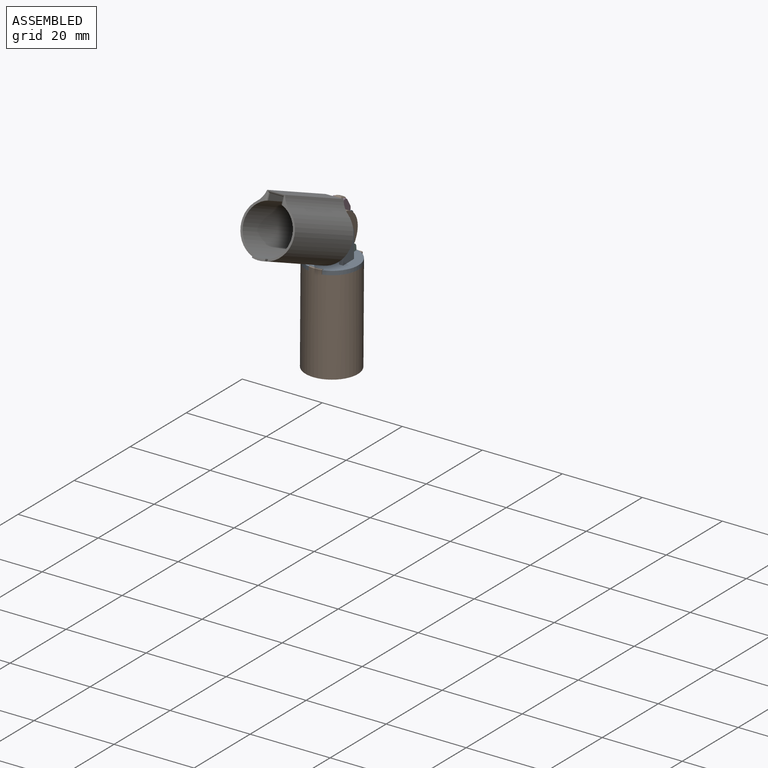
[diagram: assembled view]
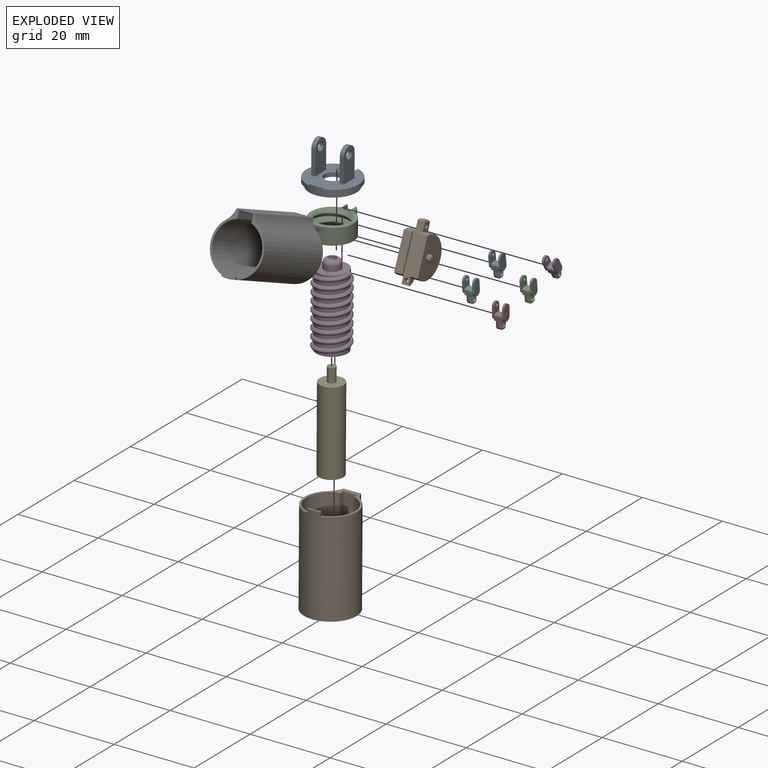
[diagram: exploded view]
GUIDED TOUR — MATED ASSEMBLY (Onshape document 576b71a8e4b0cc2e7f45caf5, AutoMate assembly 576b71a8e4b0cc2e7f45caf5_b0d993fea06a33bdf3748566_8494210f97b2610dedc9d5d6_default)

This assembly has 12 components, labeled P0..P11 below (a component is one placed occurrence of a part; the same part can appear more than once), held together by 12 mates. A mate is a constraint between two components; its type names the relative motion it leaves free:
  FASTENED — locks the two components together rigidly (no relative motion),
  REVOLUTE — leaves rotation about the listed axis free (a hinge).
Axis/direction vectors are unit vectors and 'through' points are millimeter coordinates, both in the assembly's world frame.

MATES
  1. REVOLUTE "Pivot-to-Top": P9 <-> P8, axis (1.000, 0.022, 0.000) through (2.66, -1.64, 7.49) mm
  2. REVOLUTE "Pivot-to-Link": P9 <-> P11, axis (1.000, 0.022, 0.000) through (0.61, 0.77, 13.18) mm
  3. REVOLUTE "Top-to-Worm": P3 <-> P8, axis (0.000, 0.009, 1.000) through (-0.24, -1.77, 0.49) mm
  4. REVOLUTE "Revolute 1": P7 <-> P2, axis (1.000, 0.022, 0.000) through (0.53, 4.29, -6.17) mm
  5. REVOLUTE "Revolute 3": P5 <-> P10, axis (-1.000, -0.022, 0.000) through (-1.26, 3.84, 1.82) mm
  6. FASTENED "Lid-to-Sleeve": P8 <-> P1, direction (0.000, -0.009, -1.000) through (-0.24, -1.78, -0.51) mm
  7. FASTENED "Motor-to-Worm": P4 <-> P3, direction (0.000, 0.009, 1.000) through (-0.24, -1.76, 1.29) mm
  8. REVOLUTE "Revolute 2": P7 <-> P5, axis (-1.000, -0.022, 0.000) through (-1.27, 4.16, -2.17) mm
  9. REVOLUTE "Revolute 6": P11 <-> P0, axis (1.000, 0.022, 0.000) through (0.56, 2.83, 9.75) mm
  10. FASTENED "Fastened 1": P6 <-> P9, direction (-0.020, 0.918, -0.396) through (-0.19, -4.00, 7.71) mm
  11. REVOLUTE "Revolute 4": P10 <-> P0, axis (-1.000, -0.022, 0.000) through (-1.25, 3.34, 5.79) mm
  12. REVOLUTE "Worm-to-Bolt": P2 <-> P3, axis (0.000, -0.009, -1.000) through (-0.23, -1.86, -9.11) mm

ASSEMBLY ORDER
  1. P3 — the base component [order heuristic]
  2. P4 — core [order heuristic]
  3. P2 — core [order heuristic]
  4. P1 — core [order heuristic]
  5. P8 — core [order heuristic]
  6. P7 — core [order heuristic]
  7. P9 — core [order heuristic]
  8. P5 — core [order heuristic]
  9. P11 — core [order heuristic]
  10. P0 — core [order heuristic]
  11. P10 — core [order heuristic]
  12. P6 [order verified]
Order-tag legend:
  [order verified] — this step's position reverses a verified removal order: the component was checked to insert without passing through the ones already placed.
  [order heuristic] — the first 11 components form the assembly's core: parts whose collision-free extraction could not be verified, listed in mate-graph order.

Of the 12 components, 1 carries the full construction recipe — the FeatureScript program that regenerates the part's solid from scratch; the rest are supplied as boundary geometry only.
Each toured component is shown spotlighted twice — in the assembled view, then in the exploded view, where a leader line traces a displaced component back to its assembled socket (saturated green if recipe-attached, orange if geometry-only; every other component desaturated gray) — followed by its recipe or geometry summary and the mates that hold it.
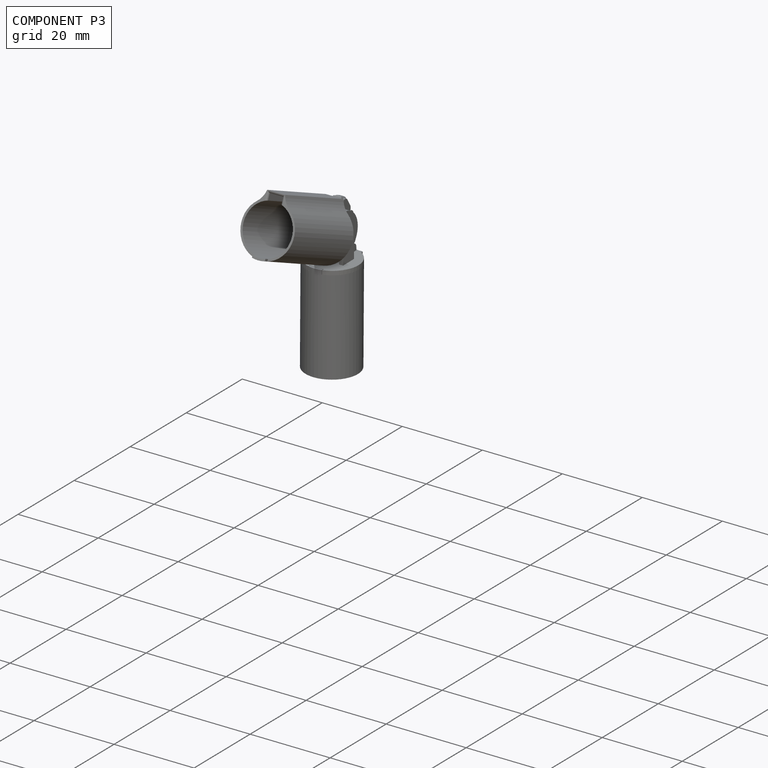
[diagram: component P3 — assembled]
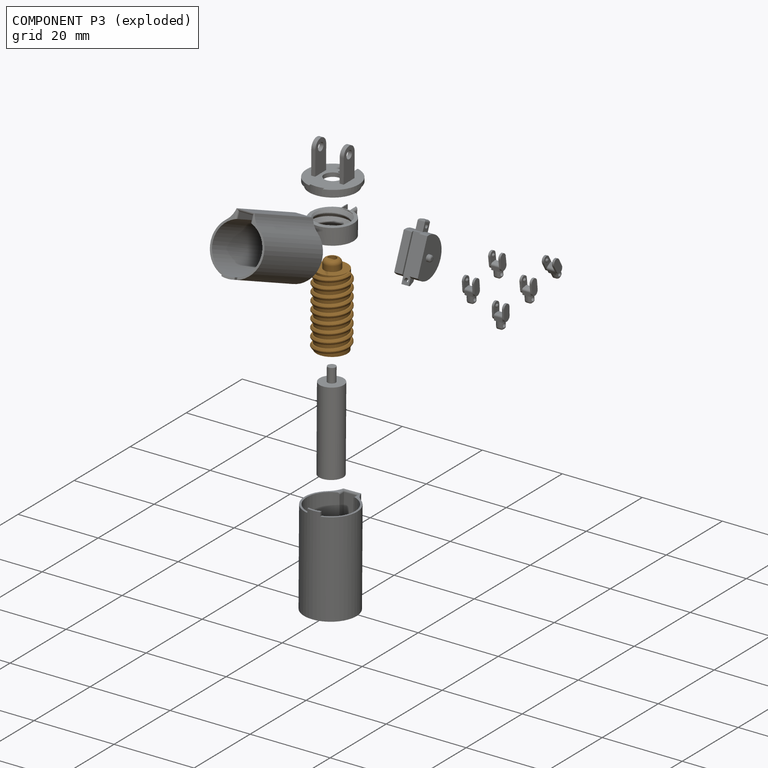
[diagram: component P3 — exploded]
COMPONENT P3 — geometry summary (no construction recipe available for this part):
  bounding box: 20.6 x 10.3 x 8.9 mm
  B-rep topology: 1 solid, 19 faces, 90 edges
  volume: 500 mm^3 (27% of its bounding box)
Held by: REVOLUTE mate "Top-to-Worm" to P8; FASTENED mate "Motor-to-Worm" to P4; REVOLUTE mate "Worm-to-Bolt" to P2.
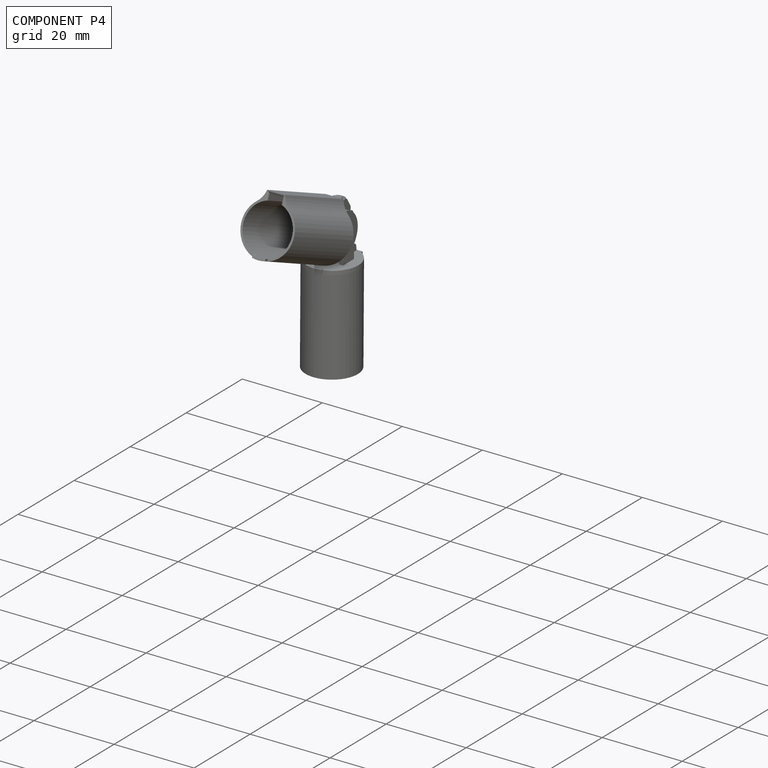
[diagram: component P4 — assembled]
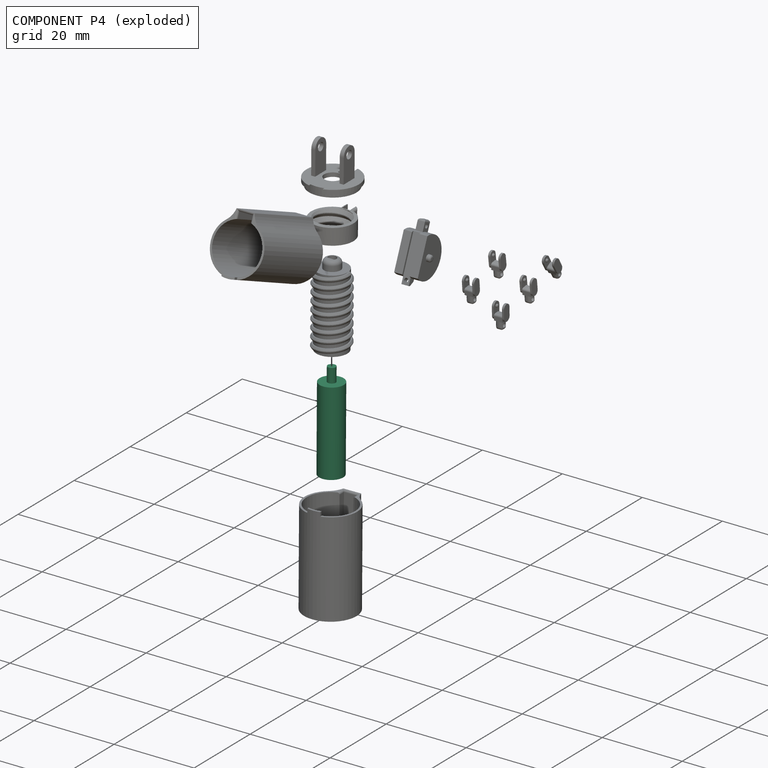
[diagram: component P4 — exploded]
COMPONENT P4 — recipe-attached (CADFS 00182902, mesh-verified: the recipe's output STEP matches this component's geometry to below the mesh-comparison resolution (tessellation chordal tolerance ~0.0386 mm)).
Held by: FASTENED mate "Motor-to-Worm" to P3.
Construction recipe (FeatureScript — the CAD program that rebuilds this solid; sketch coordinates are in the units given by the * unit suffixes, e.g. mm):

FeatureScript 1511;
import(path : "onshape/std/geometry.fs", version : "1511.0");
import(path : "onshape/std/common.fs", version : "1511.0");
const mm = millimeter;
const VERTEX = EntityType.VERTEX;
const EDGE = EntityType.EDGE;
const FACE = EntityType.FACE;
const BODY = EntityType.BODY;
function v(x, y){return vector(x, y);}
function OD(order){return orderDisambiguation(order);}
function OSD(set){return originalSetDisambiguation(set);}
function TD(topology){return topologyDisambiguation(topology);}
function TDD(query){return trueDependencyDisambiguation(query);}
function sQuery(a, b, c) {return sketchEntityQuery(a, b, c);}

annotation { "Feature Type Name" : "Feature", "Feature Type Description" : "" }
export const myFeature = defineFeature(function(context is Context, id is Id, definition is map)
    precondition{}
    {
        {
            var Q0;
            Q0=qCreatedBy(makeId("Top.planeOp"),FACE);
            var sketch = newSketch(context, id + "F0", { "sketchPlane" : qUnion([Q0])});
            skCircle(sketch, "E0", {"center": v(0, 0) * mm, "radius": 3 * mm});
            skCircle(sketch, "E1", {"center": v(0, 0) * mm, "radius": 1 * mm});
            skSolve(sketch);
        }
        {
            var Q0;
            Q0=makeQuery(id+"F0.imprint","IMPRINT",FACE,{"disambiguationData":[TD([[makeQuery(id+"F0.imprint","IMPRINT",EDGE,{"derivedFrom":sQuery(id+"F0.wireOp",EDGE,"E1")}),1.0]])]});
            extrude(context, id + "F1", {"entities" : qUnion([Q0]), "depth" : 24.3 * mm});
        }
        {
            var Q0;
            Q0=makeQuery(id+"F0.imprint","IMPRINT",FACE,{"disambiguationData":[TD([[makeQuery(id+"F0.imprint","IMPRINT",EDGE,{"derivedFrom":sQuery(id+"F0.wireOp",EDGE,"E0")}),1.0]])]});
            extrude(context, id + "F2", {"entities" : qUnion([Q0]), "operationType" : NewBodyOperationType.ADD, "depth" : 20.8 * mm});
        }
    });
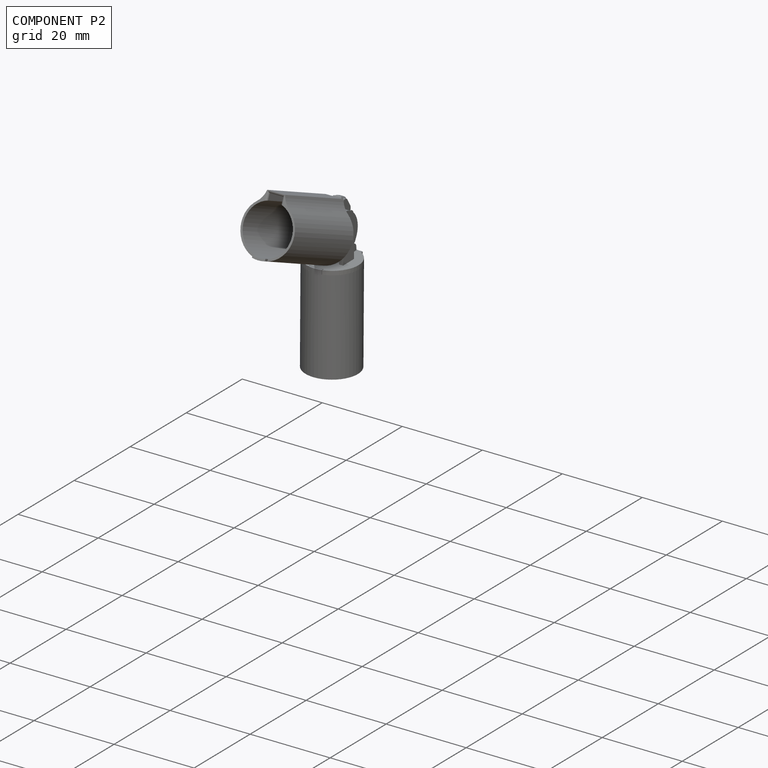
[diagram: component P2 — assembled]
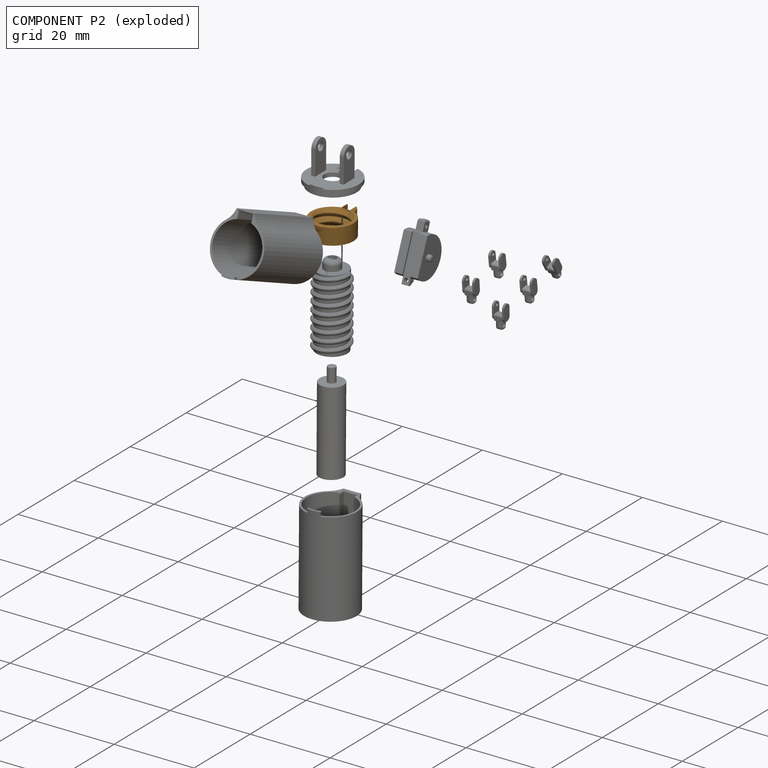
[diagram: component P2 — exploded]
COMPONENT P2 — geometry summary (no construction recipe available for this part):
  bounding box: 13.0 x 11.5 x 6.8 mm
  B-rep topology: 1 solid, 27 faces, 128 edges
  volume: 110 mm^3 (11% of its bounding box)
Held by: REVOLUTE mate "Revolute 1" to P7; REVOLUTE mate "Worm-to-Bolt" to P3.
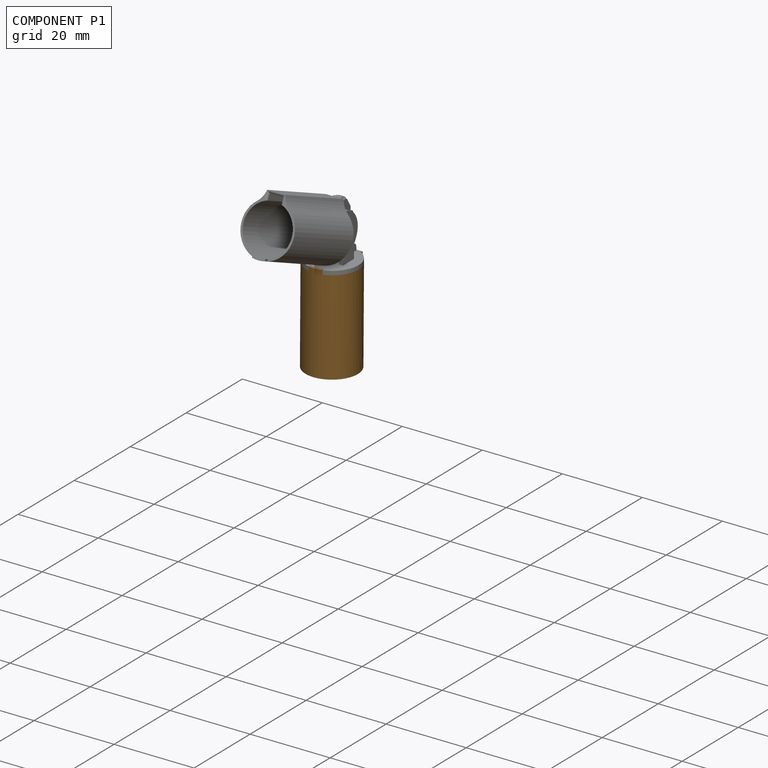
[diagram: component P1 — assembled]
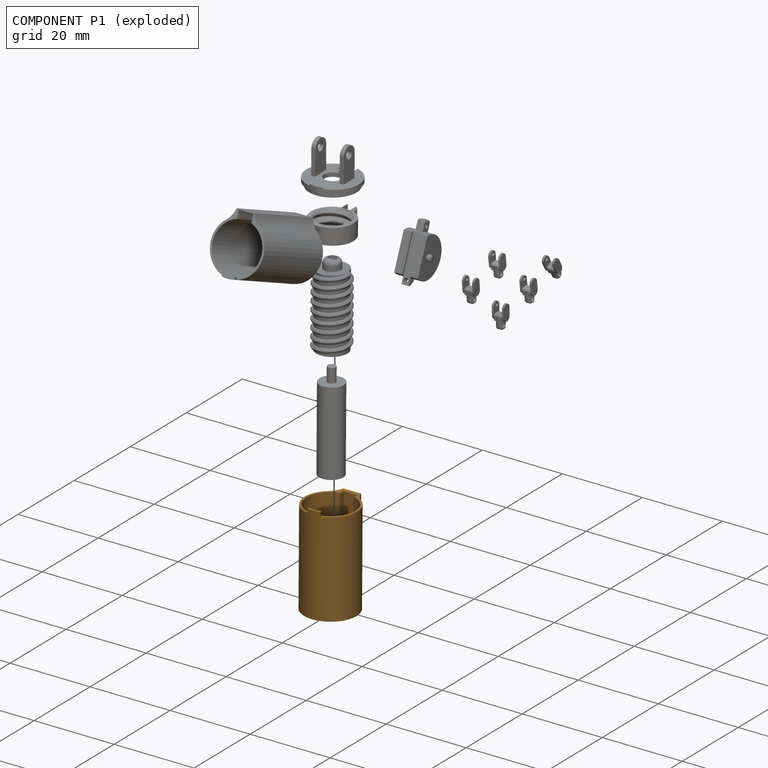
[diagram: component P1 — exploded]
COMPONENT P1 — geometry summary (no construction recipe available for this part):
  bounding box: 24.5 x 14.4 x 13.0 mm
  B-rep topology: 1 solid, 19 faces, 92 edges
  volume: 720 mm^3 (16% of its bounding box)
  symmetry: mirror-symmetric across its y mid-plane
Held by: FASTENED mate "Lid-to-Sleeve" to P8.
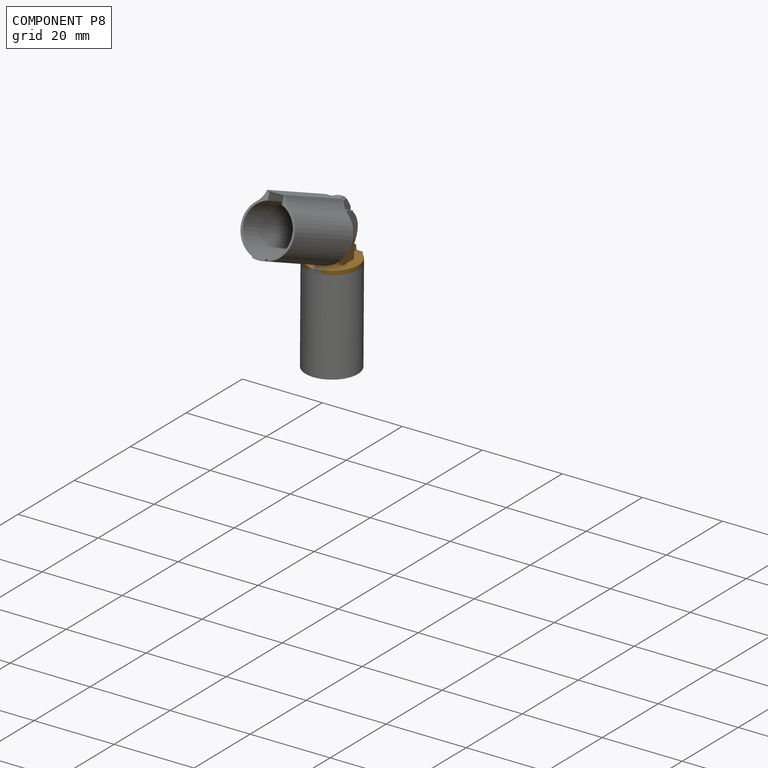
[diagram: component P8 — assembled]
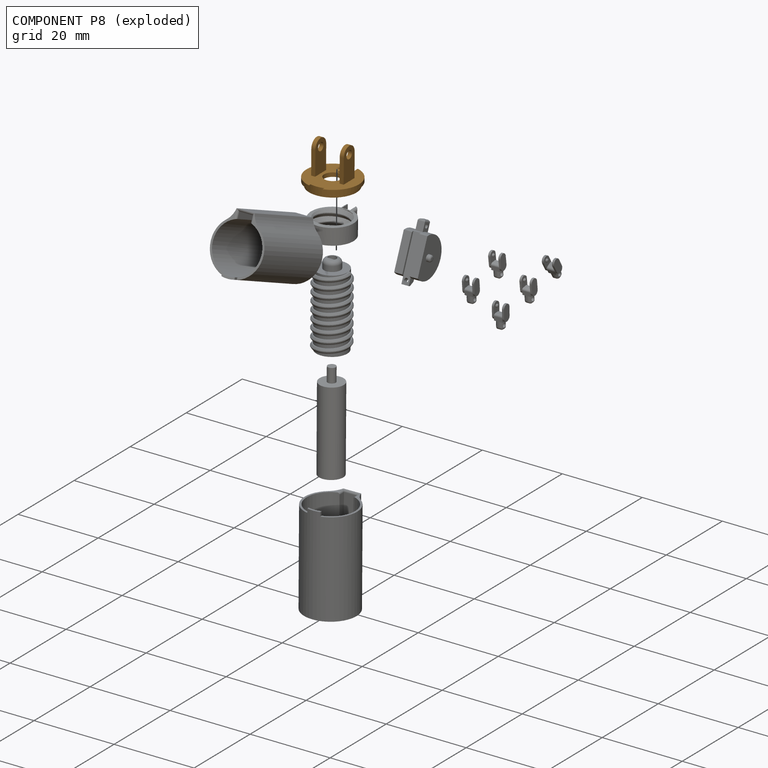
[diagram: component P8 — exploded]
COMPONENT P8 — geometry summary (no construction recipe available for this part):
  bounding box: 13.0 x 12.5 x 10.0 mm
  B-rep topology: 1 solid, 32 faces, 176 edges
  volume: 203 mm^3 (12% of its bounding box)
  symmetry: mirror-symmetric across its y mid-plane
Held by: REVOLUTE mate "Pivot-to-Top" to P9; REVOLUTE mate "Top-to-Worm" to P3; FASTENED mate "Lid-to-Sleeve" to P1.
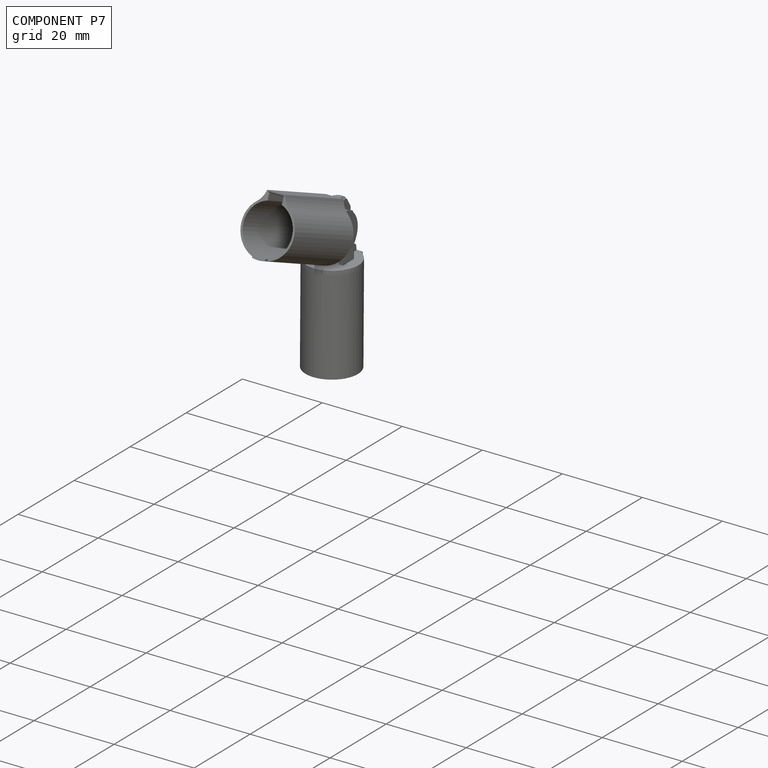
[diagram: component P7 — assembled]
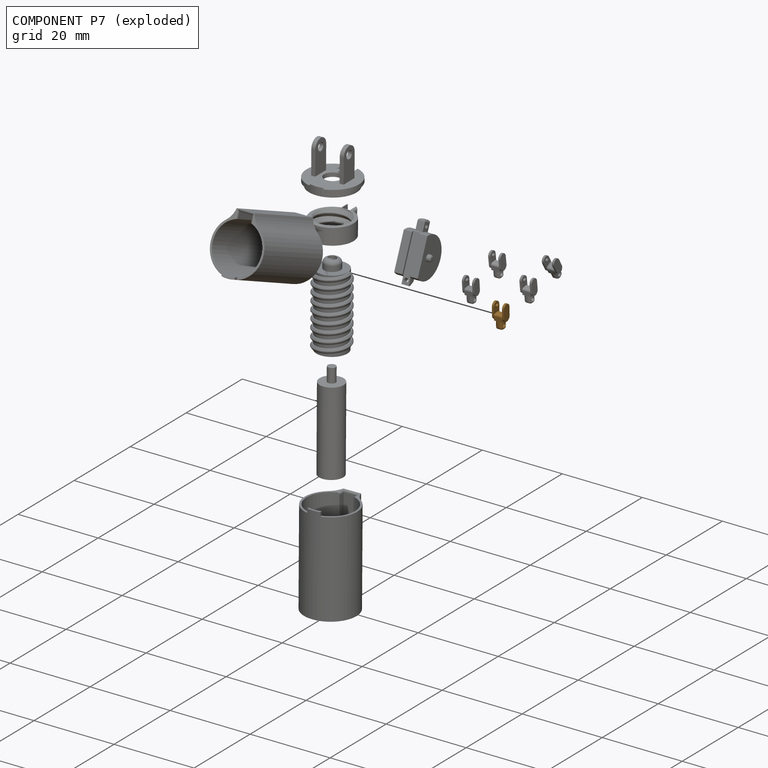
[diagram: component P7 — exploded]
COMPONENT P7 — geometry summary (no construction recipe available for this part):
  bounding box: 6.0 x 3.0 x 2.0 mm
  B-rep topology: 1 solid, 49 faces, 226 edges
  volume: 17 mm^3 (49% of its bounding box)
  symmetry: 2-fold rotationally symmetric about the x axis; mirror-symmetric across its y mid-plane, z mid-plane
Held by: REVOLUTE mate "Revolute 1" to P2; REVOLUTE mate "Revolute 2" to P5.
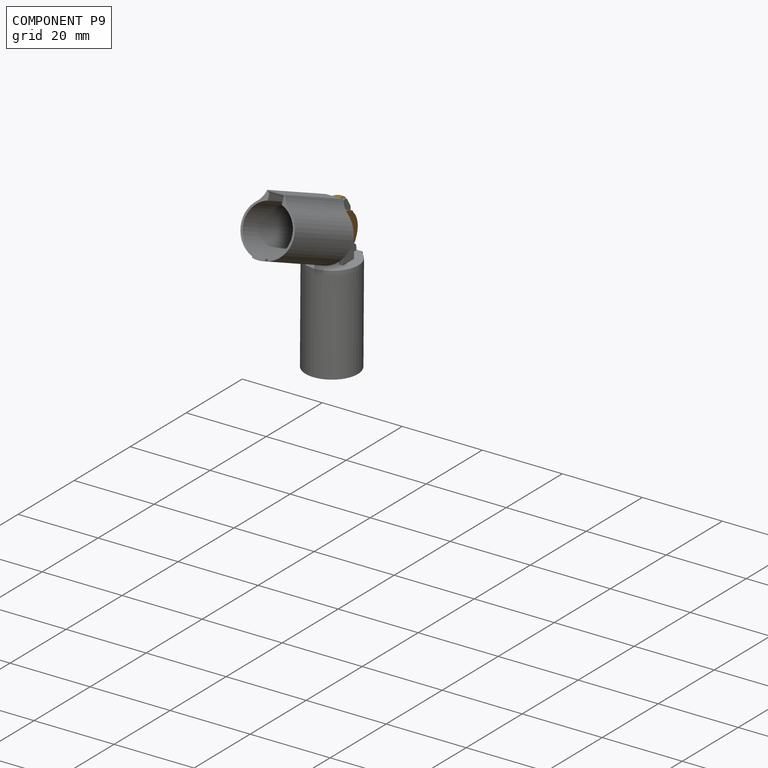
[diagram: component P9 — assembled]
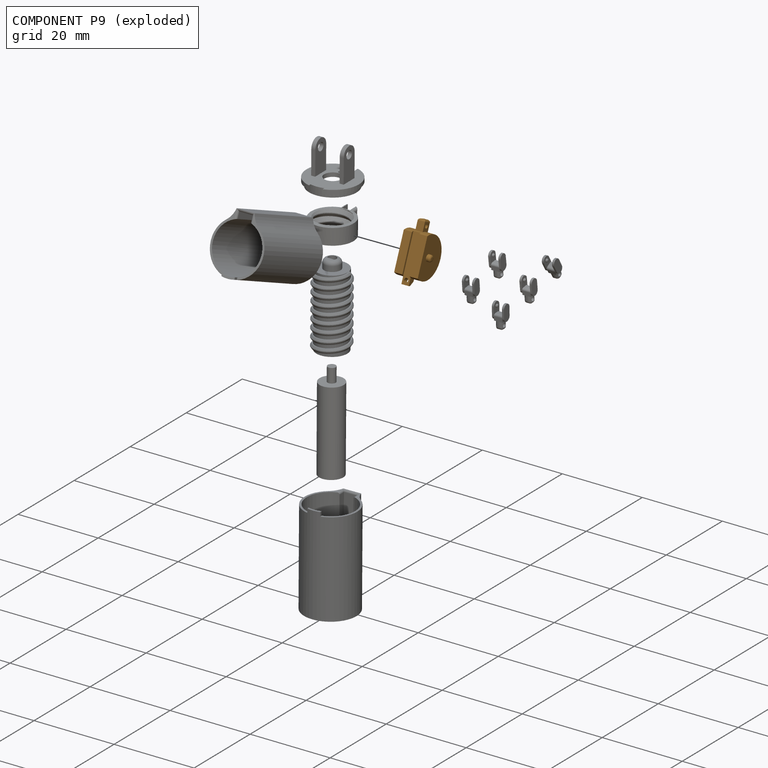
[diagram: component P9 — exploded]
COMPONENT P9 — geometry summary (no construction recipe available for this part):
  bounding box: 14.0 x 7.8 x 7.2 mm
  B-rep topology: 1 solid, 31 faces, 152 edges
  volume: 356 mm^3 (45% of its bounding box)
  symmetry: mirror-symmetric across its y mid-plane
Held by: REVOLUTE mate "Pivot-to-Top" to P8; REVOLUTE mate "Pivot-to-Link" to P11; FASTENED mate "Fastened 1" to P6.
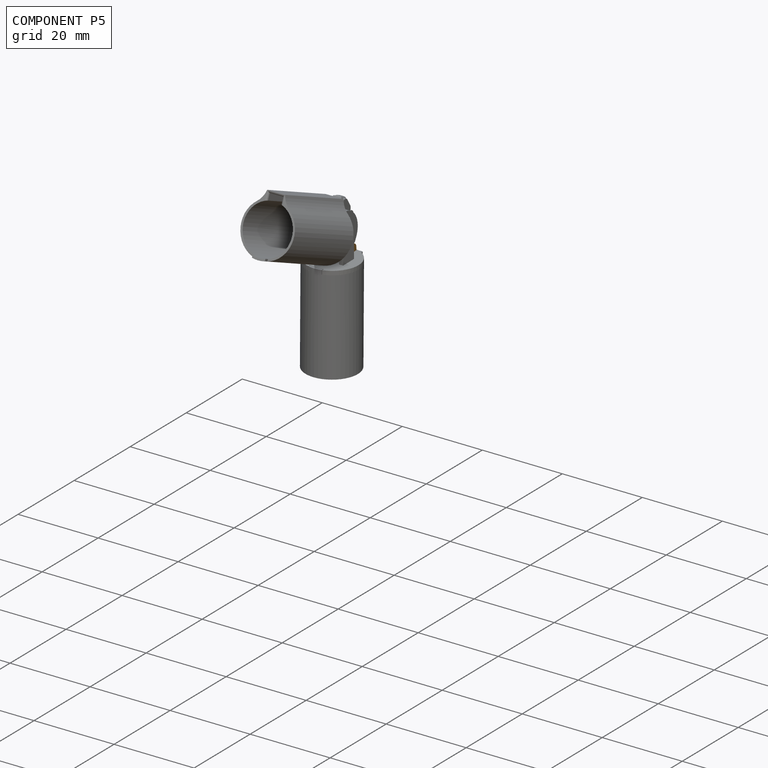
[diagram: component P5 — assembled]
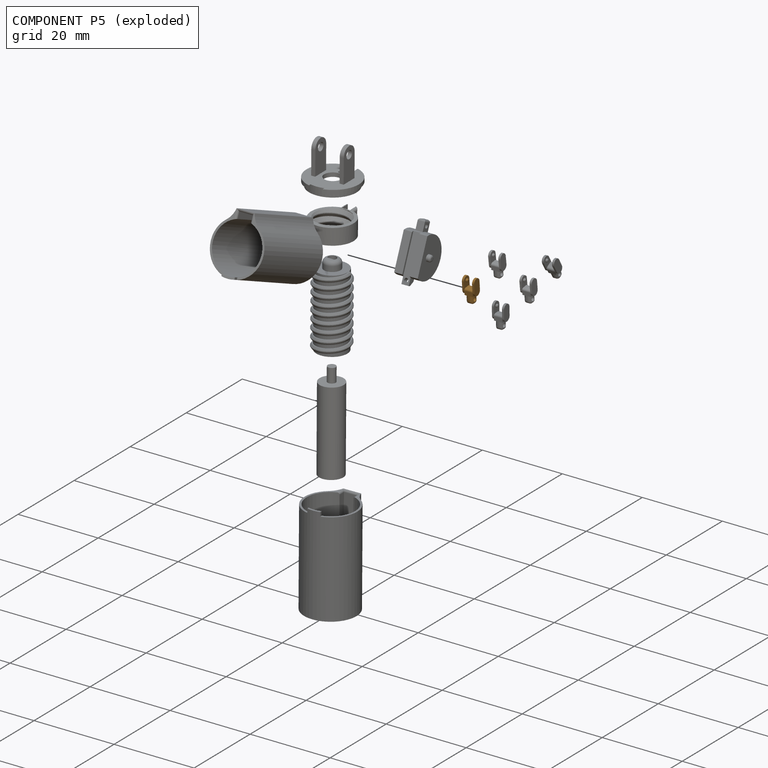
[diagram: component P5 — exploded]
COMPONENT P5 — geometry summary (no construction recipe available for this part):
  bounding box: 6.0 x 3.0 x 2.0 mm
  B-rep topology: 1 solid, 49 faces, 226 edges
  volume: 17 mm^3 (49% of its bounding box)
  symmetry: 2-fold rotationally symmetric about the x axis; mirror-symmetric across its y mid-plane, z mid-plane
Held by: REVOLUTE mate "Revolute 3" to P10; REVOLUTE mate "Revolute 2" to P7.
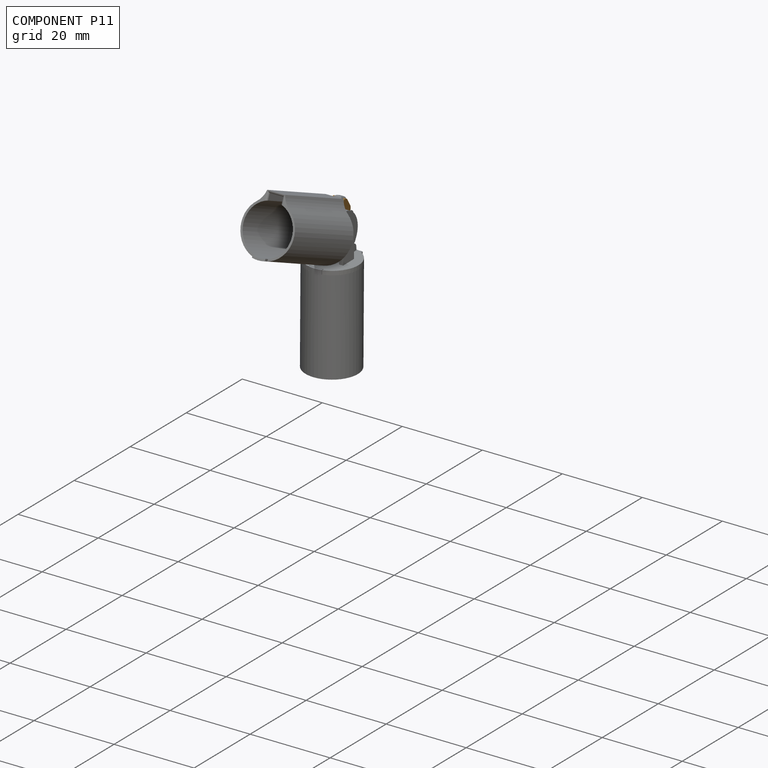
[diagram: component P11 — assembled]
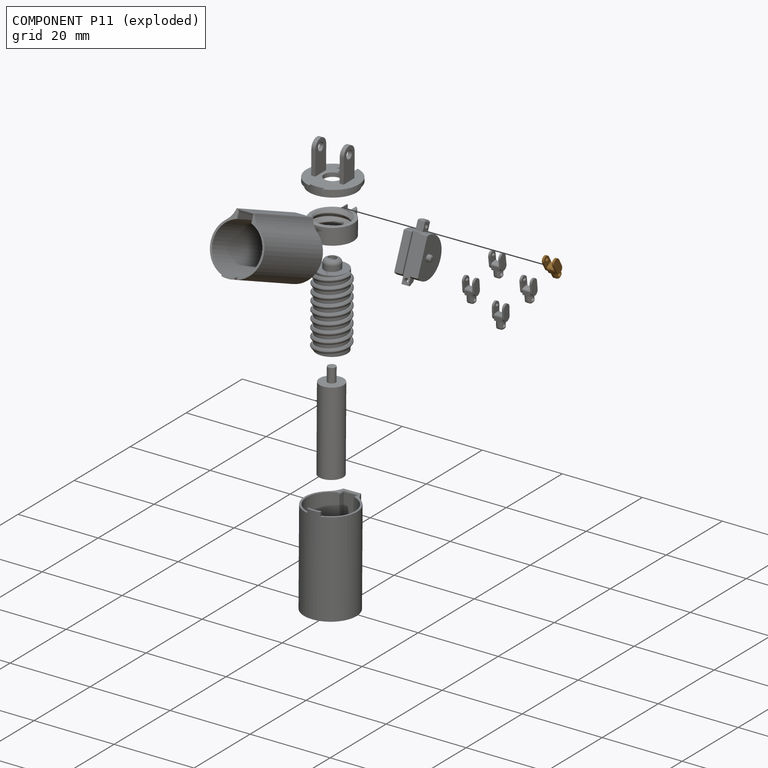
[diagram: component P11 — exploded]
COMPONENT P11 — geometry summary (no construction recipe available for this part):
  bounding box: 6.0 x 3.0 x 2.0 mm
  B-rep topology: 1 solid, 49 faces, 226 edges
  volume: 17 mm^3 (49% of its bounding box)
  symmetry: 2-fold rotationally symmetric about the x axis; mirror-symmetric across its y mid-plane, z mid-plane
Held by: REVOLUTE mate "Pivot-to-Link" to P9; REVOLUTE mate "Revolute 6" to P0.
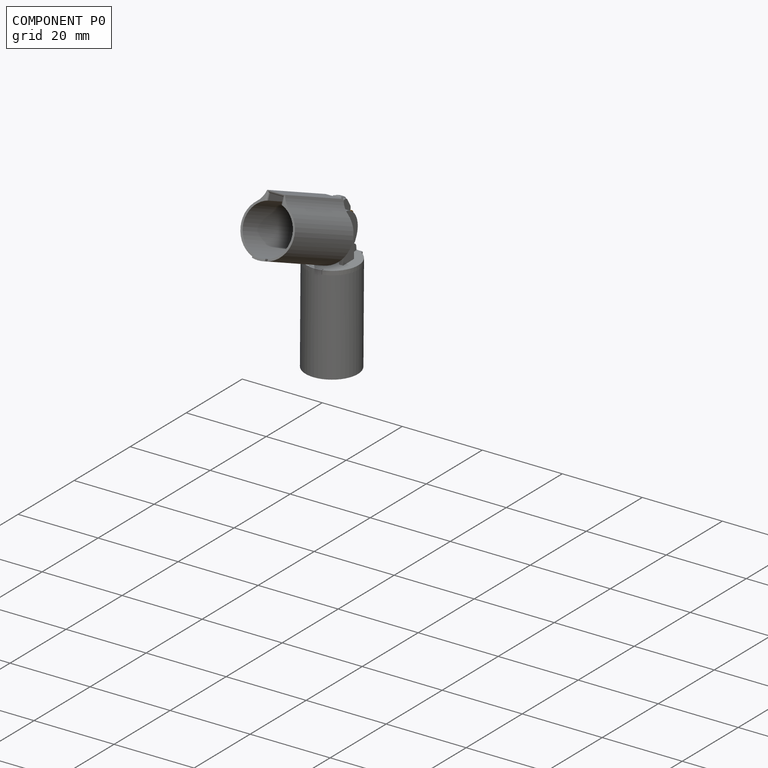
[diagram: component P0 — assembled]
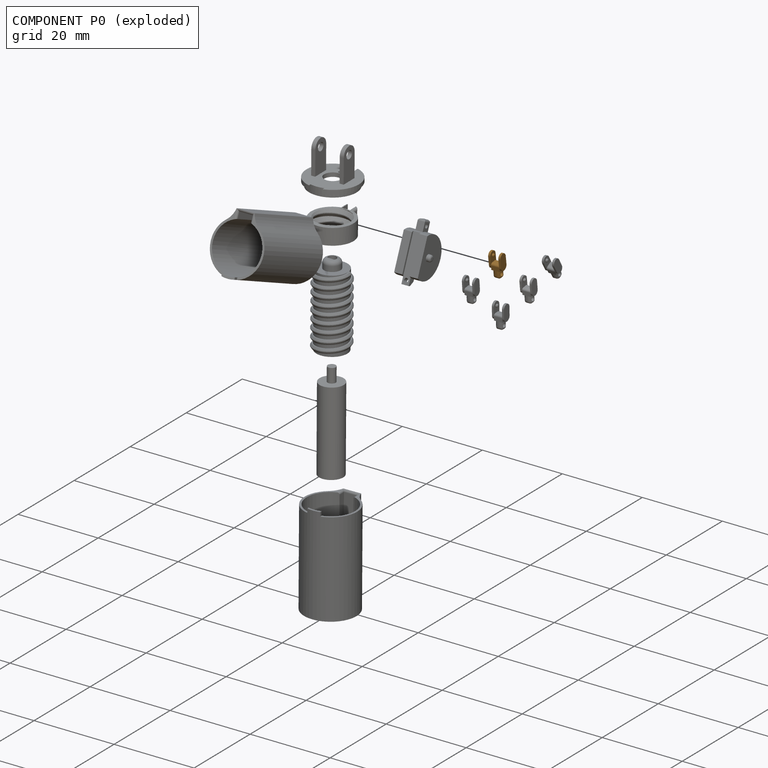
[diagram: component P0 — exploded]
COMPONENT P0 — geometry summary (no construction recipe available for this part):
  bounding box: 6.0 x 3.0 x 2.0 mm
  B-rep topology: 1 solid, 49 faces, 226 edges
  volume: 17 mm^3 (49% of its bounding box)
  symmetry: 2-fold rotationally symmetric about the x axis; mirror-symmetric across its y mid-plane, z mid-plane
Held by: REVOLUTE mate "Revolute 6" to P11; REVOLUTE mate "Revolute 4" to P10.
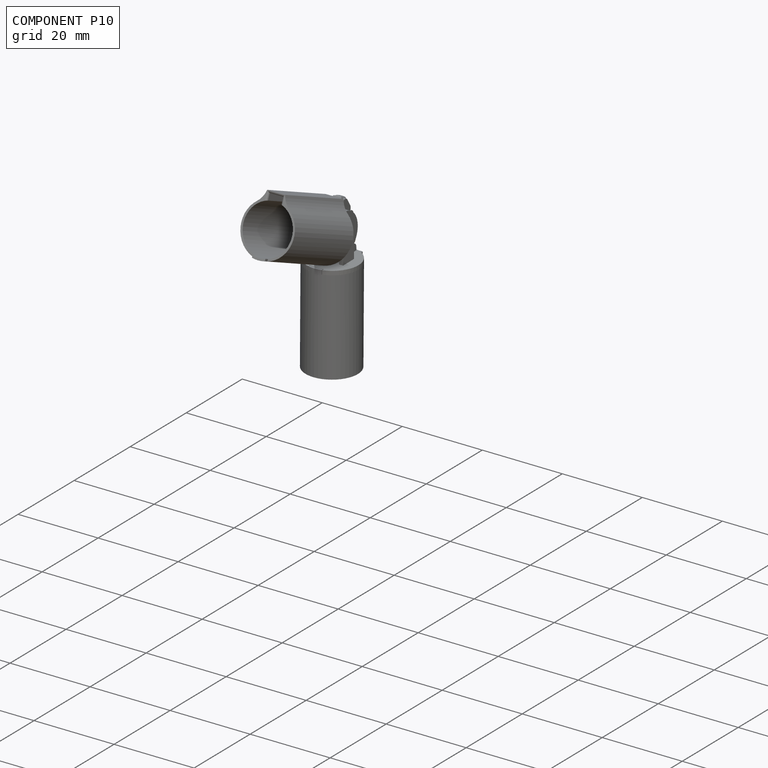
[diagram: component P10 — assembled]
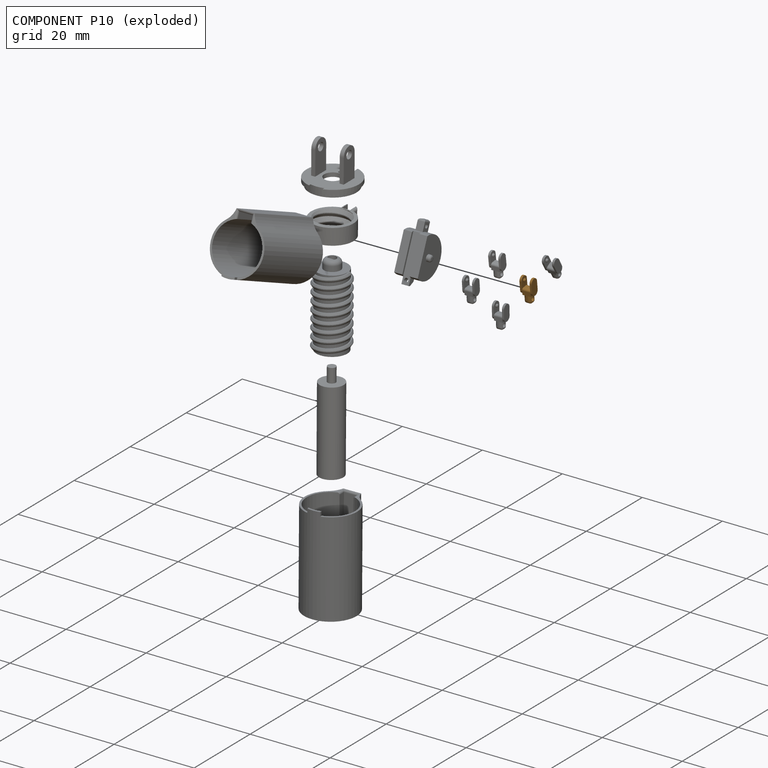
[diagram: component P10 — exploded]
COMPONENT P10 — geometry summary (no construction recipe available for this part):
  bounding box: 6.0 x 3.0 x 2.0 mm
  B-rep topology: 1 solid, 49 faces, 226 edges
  volume: 17 mm^3 (49% of its bounding box)
  symmetry: 2-fold rotationally symmetric about the x axis; mirror-symmetric across its y mid-plane, z mid-plane
Held by: REVOLUTE mate "Revolute 3" to P5; REVOLUTE mate "Revolute 4" to P0.
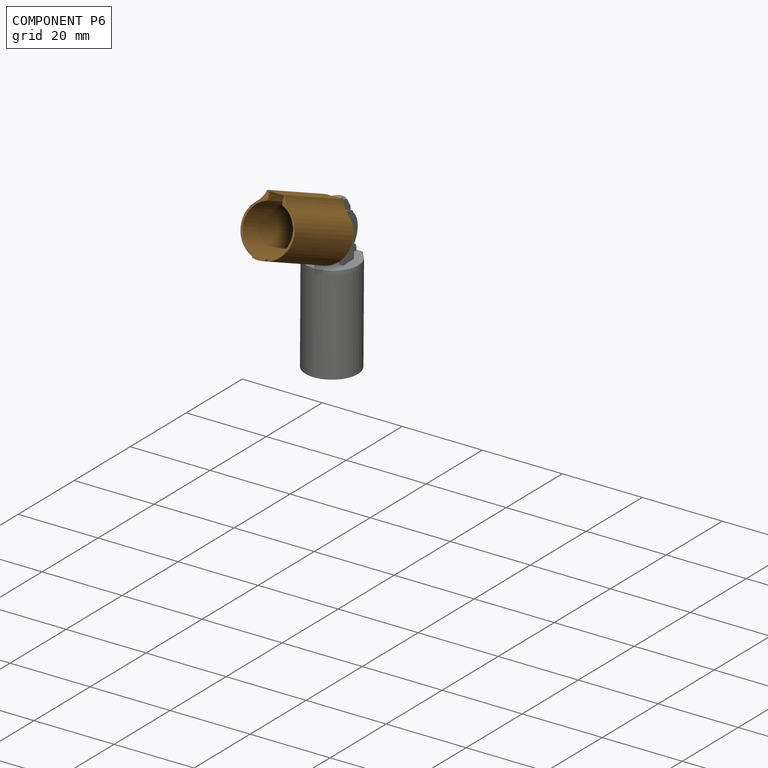
[diagram: component P6 — assembled]
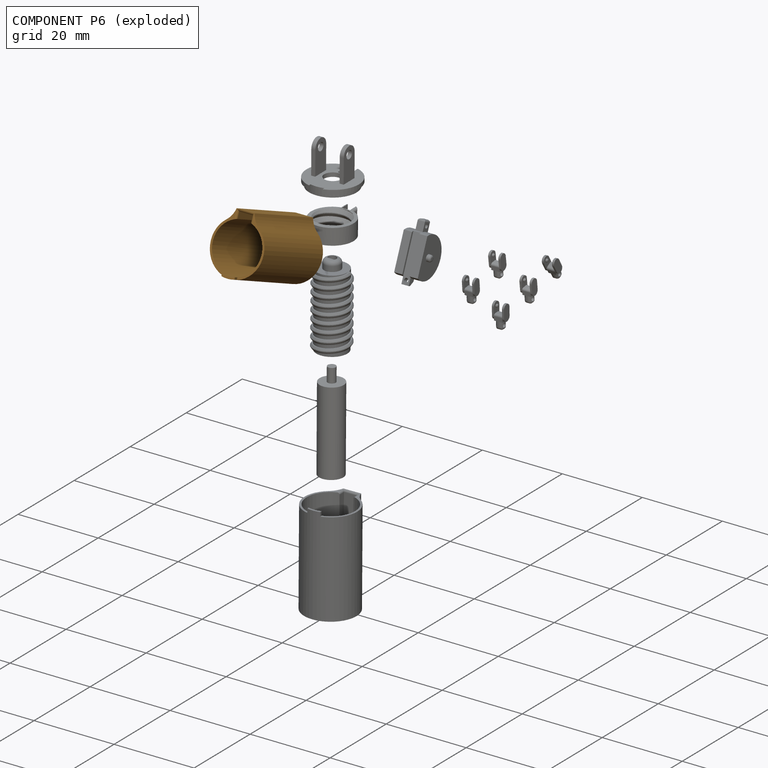
[diagram: component P6 — exploded]
COMPONENT P6 — geometry summary (no construction recipe available for this part):
  bounding box: 24.5 x 14.4 x 13.0 mm
  B-rep topology: 1 solid, 19 faces, 92 edges
  volume: 720 mm^3 (16% of its bounding box)
  symmetry: mirror-symmetric across its y mid-plane
Held by: FASTENED mate "Fastened 1" to P9.
PROVENANCE & LICENSES
Assembly (occurrences, transforms, mates, per-part STEP geometry): AutoMate dataset, Zenodo record 7776208, CC0.
Construction recipes: CADFS (HuggingFace VladPyatov/CADFS, CC-BY-4.0, layered over the ABC dataset), FeatureScript reconstruction programs keyed by ABC model id.
Join: ABC meta listings map ABC model id -> Onshape documentId; within a shared document, parts are matched by geometric signature (bounding-box dims + volume at 0.1% relative tolerance, exact B-rep face/solid counts).
Verification: 1 of this assembly's 12 components carries a recipe attachment, and every attachment is mesh-verified: the CADFS STEP and the AutoMate member STEP were compared as meshes in their shared local frame (symmetric sampled-point-to-mesh distance); worst across the 1 attachment: below the mesh-comparison resolution (tessellation chordal tolerance ~0.0386 mm) on a 26 mm part.
Renders: orthographic iso camera (az 35 / el 25); the floor grid conveys scale (grid pitch printed in each image; no ruler). In the exploded view each component is displaced by its stored offset vector: the offsets alone carry the explosion direction (mate normal/axis signs are not orientation cues and do not encode it), and separation distances are assigned per mate-chain, not proportionally to assembly-order depth.
